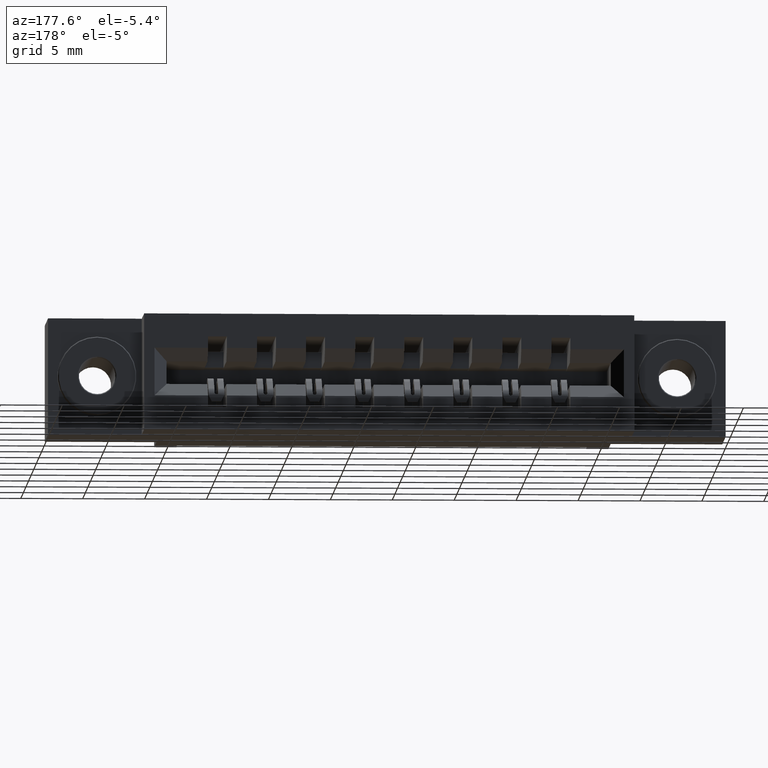
[diagram: clean part render]
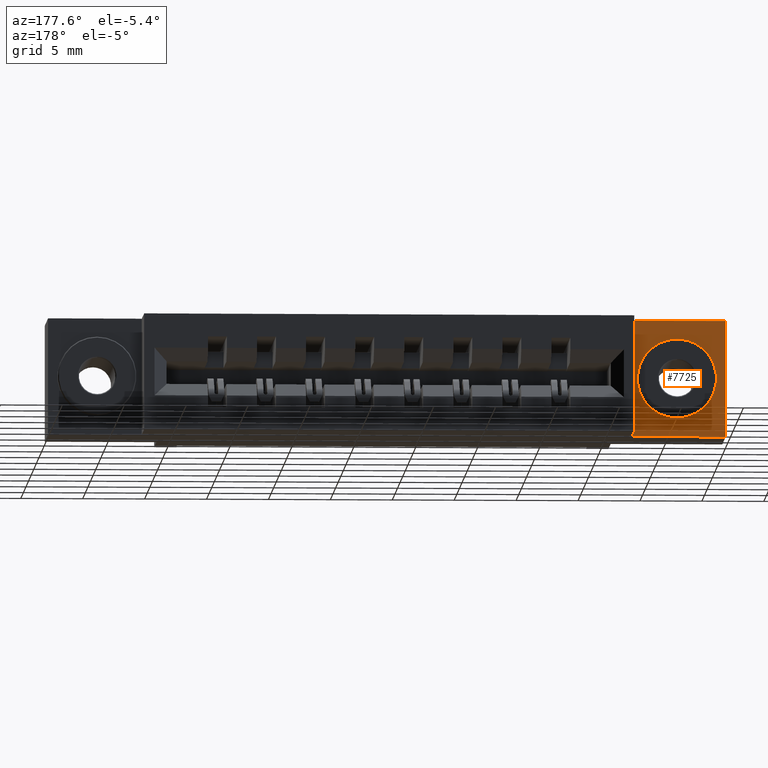
[diagram: same view with one face highlighted and labeled with its STEP entity id]
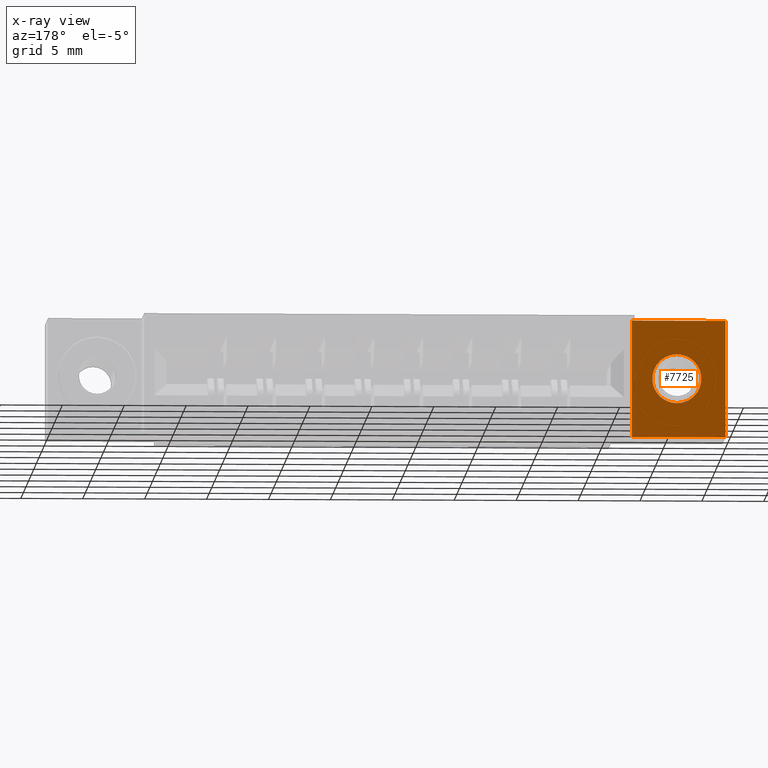
[diagram: x-ray of the same camera — body ghosted, the highlighted face saturated]
A machine part, auxiliary view. The second image highlights one B-rep face of the part: STEP entity #7725.
The next image is the same camera in x-ray: the body ghosted, the highlighted face saturated — about 0% of this face is hidden behind the body in this view.
In plain terms, the highlighted planar face has unit normal (0, -1, 0).
Its self-contained STEP definition (entity closure, byte-faithful):
#13 = CIRCLE ( 'NONE', #692, 0.07800000000000000000 ) ;
#130 = DIRECTION ( 'NONE',  ( 0.0000000000000000000, 1.000000000000000000, 0.0000000000000000000 ) ) ;
#283 = VECTOR ( 'NONE', #7482, 39.37007874015748100 ) ;
#692 = AXIS2_PLACEMENT_3D ( 'NONE', #11080, #3205, #9370 ) ;
#1679 = EDGE_CURVE ( 'NONE', #5643, #2324, #5346, .T. ) ;
#1683 = CARTESIAN_POINT ( 'NONE',  ( 0.0000000000000000000, 0.4199999999999999800, 0.0000000000000000000 ) ) ;
#1920 = PLANE ( 'NONE',  #6117 ) ;
#1971 = CARTESIAN_POINT ( 'NONE',  ( 0.0000000000000000000, 0.4199999999999999800, -0.3700000000000001600 ) ) ;
#1997 = DIRECTION ( 'NONE',  ( 0.0000000000000000000, 0.0000000000000000000, 1.000000000000000000 ) ) ;
#2002 = CARTESIAN_POINT ( 'NONE',  ( 0.0000000000000000000, 0.4199999999999999800, -0.3700000000000001600 ) ) ;
#2324 = VERTEX_POINT ( 'NONE', #5443 ) ;
#2512 = EDGE_LOOP ( 'NONE', ( #7888, #8681, #5423, #7619 ) ) ;
#2515 = VECTOR ( 'NONE', #6819, 39.37007874015748100 ) ;
#2792 = DIRECTION ( 'NONE',  ( 0.0000000000000000000, -1.000000000000000000, 0.0000000000000000000 ) ) ;
#2977 = FACE_BOUND ( 'NONE', #4982, .T. ) ;
#3023 = VECTOR ( 'NONE', #6354, 39.37007874015748100 ) ;
#3205 = DIRECTION ( 'NONE',  ( 0.0000000000000000000, 1.000000000000000000, 0.0000000000000000000 ) ) ;
#3481 = EDGE_CURVE ( 'NONE', #2324, #4304, #7470, .T. ) ;
#3625 = CARTESIAN_POINT ( 'NONE',  ( 0.1550000000000001100, 0.4199999999999999800, -0.1070000000000000100 ) ) ;
#3668 = EDGE_CURVE ( 'NONE', #7650, #7599, #9893, .T. ) ;
#3759 = CARTESIAN_POINT ( 'NONE',  ( 0.0000000000000000000, 0.4199999999999999800, 0.0000000000000000000 ) ) ;
#4186 = CARTESIAN_POINT ( 'NONE',  ( 0.2980000000000001000, 0.4199999999999999800, -0.3700000000000001600 ) ) ;
#4304 = VERTEX_POINT ( 'NONE', #10380 ) ;
#4404 = VECTOR ( 'NONE', #5399, 39.37007874015748100 ) ;
#4546 = LINE ( 'NONE', #3759, #4404 ) ;
#4982 = EDGE_LOOP ( 'NONE', ( #6347, #10978 ) ) ;
#5323 = EDGE_CURVE ( 'NONE', #4304, #10999, #4546, .T. ) ;
#5346 = LINE ( 'NONE', #2002, #3023 ) ;
#5399 = DIRECTION ( 'NONE',  ( 1.000000000000000000, 0.0000000000000000000, 0.0000000000000000000 ) ) ;
#5423 = ORIENTED_EDGE ( 'NONE', *, *, #10829, .T. ) ;
#5443 = CARTESIAN_POINT ( 'NONE',  ( 0.0000000000000000000, 0.4199999999999999800, -0.3700000000000001600 ) ) ;
#5643 = VERTEX_POINT ( 'NONE', #4186 ) ;
#6117 = AXIS2_PLACEMENT_3D ( 'NONE', #1971, #2792, #8920 ) ;
#6273 = FACE_OUTER_BOUND ( 'NONE', #2512, .T. ) ;
#6347 = ORIENTED_EDGE ( 'NONE', *, *, #3668, .F. ) ;
#6354 = DIRECTION ( 'NONE',  ( -1.000000000000000000, -0.0000000000000000000, -0.0000000000000000000 ) ) ;
#6479 = CARTESIAN_POINT ( 'NONE',  ( 0.2980000000000001000, 0.4199999999999999800, 0.0000000000000000000 ) ) ;
#6745 = EDGE_CURVE ( 'NONE', #7599, #7650, #13, .T. ) ;
#6819 = DIRECTION ( 'NONE',  ( -0.0000000000000000000, -0.0000000000000000000, 1.000000000000000000 ) ) ;
#7189 = CARTESIAN_POINT ( 'NONE',  ( 0.1550000000000001100, 0.4199999999999999800, -0.2630000000000000100 ) ) ;
#7470 = LINE ( 'NONE', #1683, #2515 ) ;
#7482 = DIRECTION ( 'NONE',  ( 0.0000000000000000000, 0.0000000000000000000, -1.000000000000000000 ) ) ;
#7599 = VERTEX_POINT ( 'NONE', #7189 ) ;
#7619 = ORIENTED_EDGE ( 'NONE', *, *, #1679, .T. ) ;
#7650 = VERTEX_POINT ( 'NONE', #3625 ) ;
#7725 = ADVANCED_FACE ( 'NONE', ( #2977, #6273 ), #1920, .F. ) ;
#7888 = ORIENTED_EDGE ( 'NONE', *, *, #3481, .T. ) ;
#8004 = CARTESIAN_POINT ( 'NONE',  ( 0.1550000000000001100, 0.4199999999999999800, -0.1850000000000000000 ) ) ;
#8541 = CARTESIAN_POINT ( 'NONE',  ( 0.2980000000000001000, 0.4199999999999999800, 0.0000000000000000000 ) ) ;
#8681 = ORIENTED_EDGE ( 'NONE', *, *, #5323, .T. ) ;
#8901 = LINE ( 'NONE', #6479, #283 ) ;
#8920 = DIRECTION ( 'NONE',  ( 0.0000000000000000000, -0.0000000000000000000, -1.000000000000000000 ) ) ;
#9370 = DIRECTION ( 'NONE',  ( 0.0000000000000000000, 0.0000000000000000000, 1.000000000000000000 ) ) ;
#9893 = CIRCLE ( 'NONE', #10872, 0.07800000000000000000 ) ;
#10380 = CARTESIAN_POINT ( 'NONE',  ( 0.0000000000000000000, 0.4199999999999999800, 0.0000000000000000000 ) ) ;
#10829 = EDGE_CURVE ( 'NONE', #10999, #5643, #8901, .T. ) ;
#10872 = AXIS2_PLACEMENT_3D ( 'NONE', #8004, #130, #1997 ) ;
#10978 = ORIENTED_EDGE ( 'NONE', *, *, #6745, .F. ) ;
#10999 = VERTEX_POINT ( 'NONE', #8541 ) ;
#11080 = CARTESIAN_POINT ( 'NONE',  ( 0.1550000000000001100, 0.4199999999999999800, -0.1850000000000000000 ) ) ;